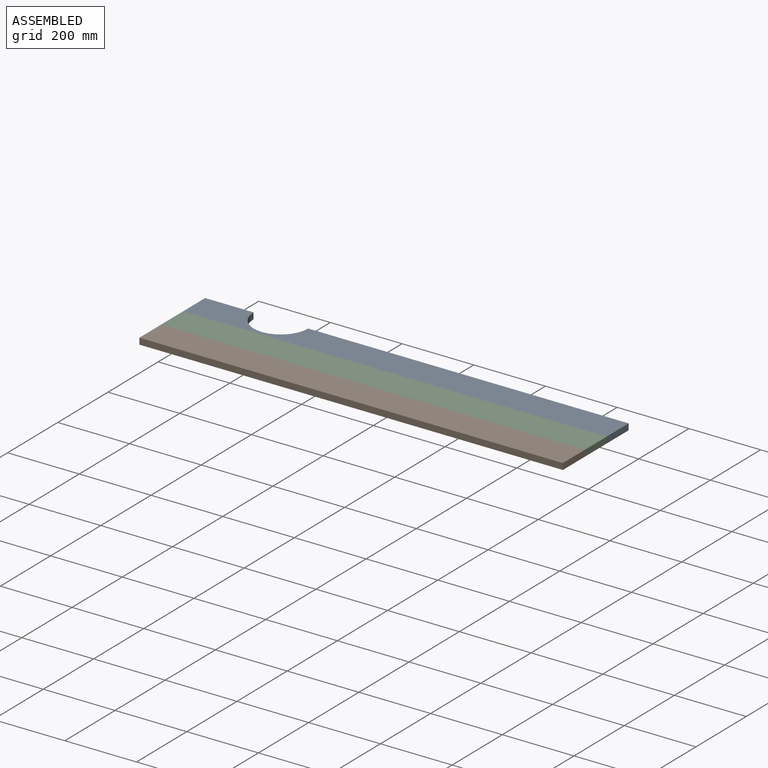
[diagram: assembled view]
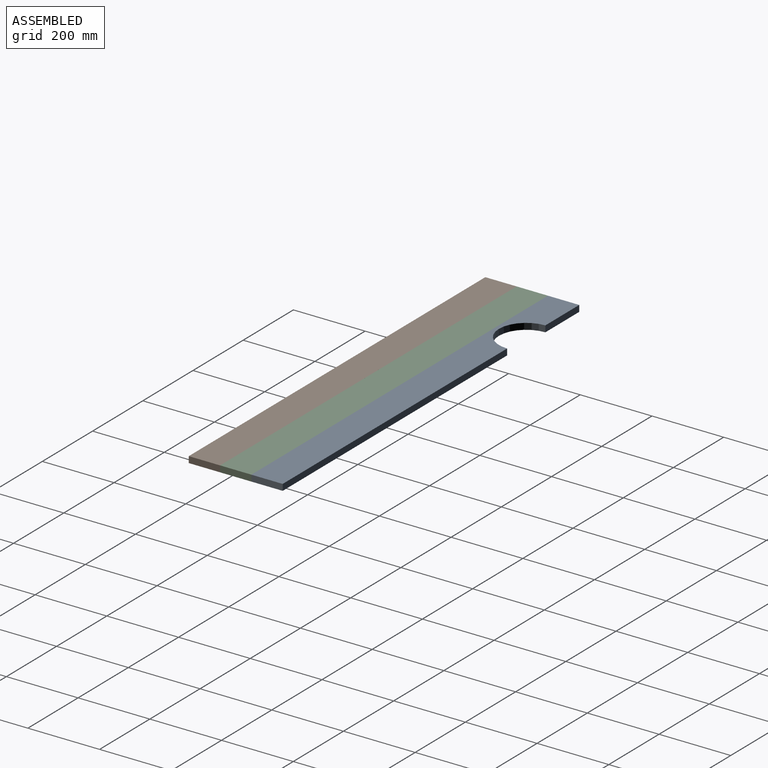
[diagram: assembled view, second angle]
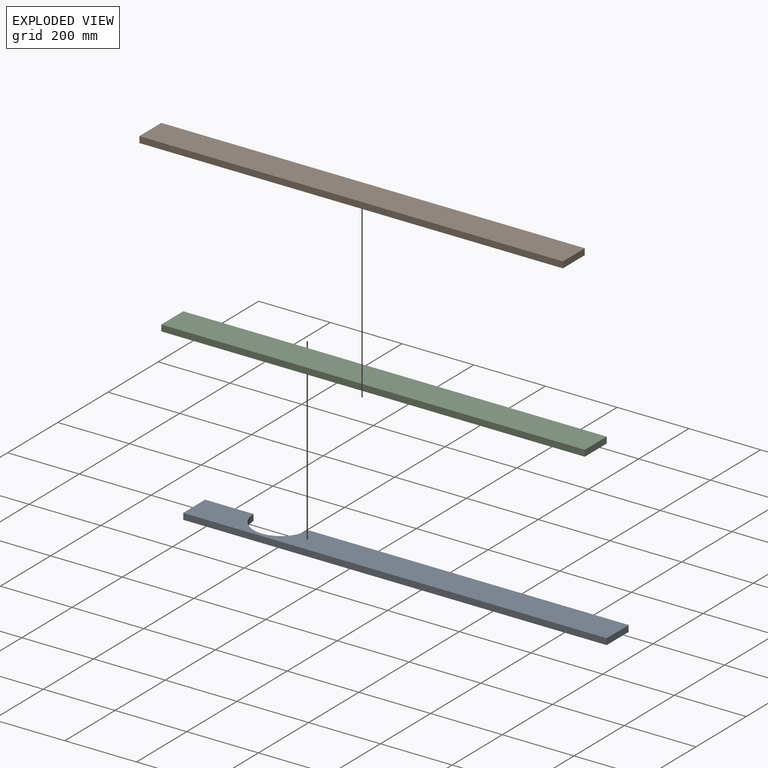
[diagram: exploded view]
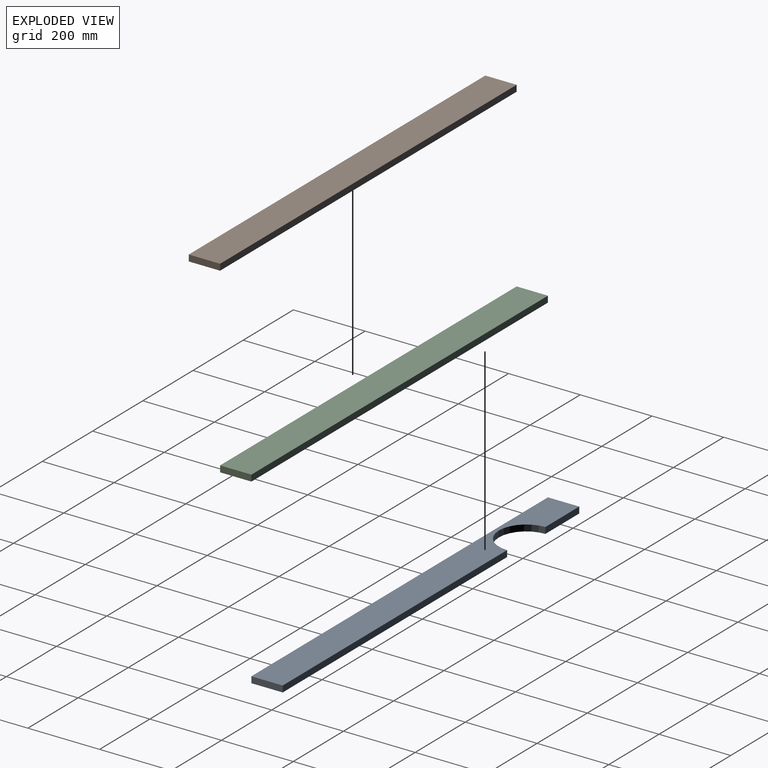
[diagram: exploded view, second angle]
ASSEMBLY  parts=3 mates=2
PART A: 8 faces, bbox 1181.1x87.3x17.5 mm
  f0: plane 893.76x17.46mm, normal (0,-1,0), area 15607.3mm2, adj f1,f5,f6,f7
  f1: plane 87.31x17.46mm, normal (1,0,0), area 1524.7mm2, adj f0,f2,f6,f7
  f2: plane 1181.1x17.46mm, normal (0,1,0), area 20625mm2, adj f1,f3,f6,f7
  f3: plane 87.31x17.46mm, normal (-1,0,0), area 1524.7mm2, adj f2,f4,f6,f7
  f4: plane 134.94x17.46mm, normal (0,-1,0), area 2356.3mm2, adj f3,f5,f6,f7
  f5: cylinder r=76.2mm len=152.4mm, axis (0,0,-1), area 4180.3mm2, adj f0,f4,f6,f7
  f6: plane 1181.1x87.31mm, normal (0,0,1), area 94004.1mm2, adj f0,f1,f2,f3,f4,f5
  f7: plane 1181.1x87.31mm, normal (0,0,-1), area 94004.1mm2, adj f0,f1,f2,f3,f4,f5
PART B: 6 faces, bbox 1181.1x87.3x17.5 mm
  f0: plane 1181.1x17.46mm, normal (0,-1,0), area 20625mm2, adj f1,f3,f4,f5
  f1: plane 87.31x17.46mm, normal (1,0,0), area 1524.7mm2, adj f0,f2,f4,f5
  f2: plane 1181.1x17.46mm, normal (0,1,0), area 20625mm2, adj f1,f3,f4,f5
  f3: plane 87.31x17.46mm, normal (-1,0,0), area 1524.7mm2, adj f0,f2,f4,f5
  f4: plane 1181.1x87.31mm, normal (0,0,1), area 103124.8mm2, adj f0,f1,f2,f3
  f5: plane 1181.1x87.31mm, normal (0,0,-1), area 103124.8mm2, adj f0,f1,f2,f3
PART C: same geometry as B
PLACE A rot(axis=(1,0,0),180deg) t=(140.11,-11.27,185.46)mm
PLACE B t=(140.11,-273.21,168)mm
PLACE C t=(140.11,-185.9,168)mm fixed
MATE fastened C.f4 <-> B.f4  axis (0,0,1) through (-450.44,-185.9,185.46)mm
MATE fastened C.f5 <-> A.f6  axis (0,0,-1) through (-450.44,-98.59,168)mm
